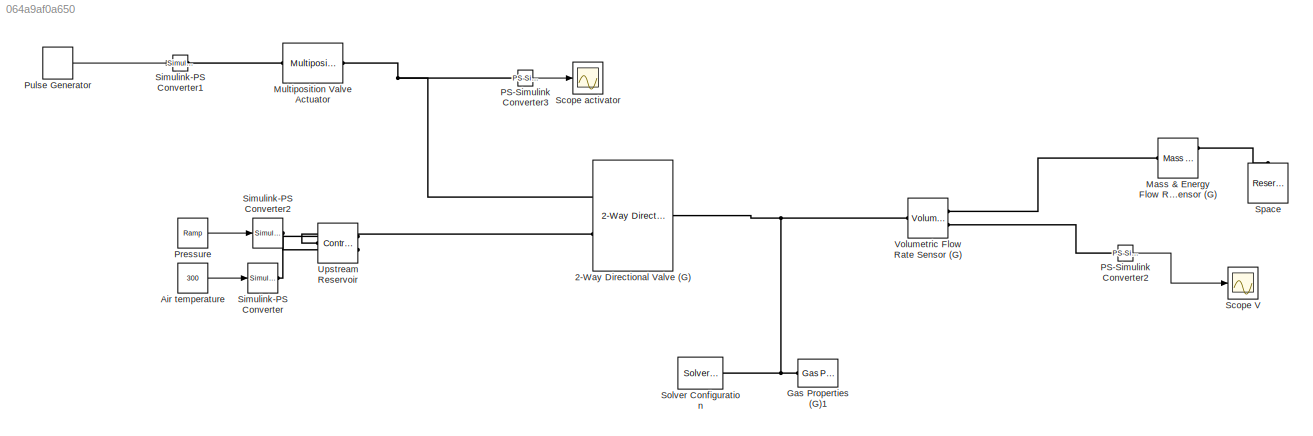
MODEL slx_064a9af0a650
KIND model
CONFIG AbsTol = auto
CONFIG EnableMultiTasking = off
CONFIG FixedStep = auto
CONFIG MaxStep = auto
CONFIG MinStep = auto
CONFIG RelTol = 1e-3
CONFIG SampleTimeConstraint = Unconstrained
CONFIG SolverName = VariableStepAuto
CONFIG StartTime = 0.0
CONFIG StopTime = 20
BLOCK [Reference] 2-Way Directional Valve (G)  REF=SimscapeFluids_lib/Gas/Valves & Orifices/Directional Control
Valves/2-Way Directional
Valve (G)
  Ports = [0, 0, 0, 0, 0, 1, 2]
  SourceBlock = SimscapeFluids_lib/Gas/Valves & Orifices/Directional Control\nValves/2-Way Directional\nValve (G)
  SourceProductBaseCode = SH
  SourceType = 2-Way Directional\nValve (G)
BLOCK [Constant] Air temperature
  Value = 300
BLOCK [Reference] Gas Properties (G)1  REF=fl_lib/Gas/Utilities/Gas Properties (G)
  Ports = [0, 0, 0, 0, 0, 0, 1]
  SourceBlock = fl_lib/Gas/Utilities/Gas Properties (G)
  SourceProductBaseCode = SS
  SourceType = Gas Properties (G)
BLOCK [Reference] Mass & Energy Flow Rate Sensor (G)  REF=fl_lib/Gas/Sensors/Mass & Energy Flow
Rate Sensor (G)
  Ports = [0, 0, 0, 0, 0, 1, 3]
  SourceBlock = fl_lib/Gas/Sensors/Mass & Energy Flow\nRate Sensor (G)
  SourceProductBaseCode = SS
  SourceType = Mass & Energy Flow\nRate Sensor (G)
BLOCK [Reference] Multiposition Valve Actuator  REF=SimscapeFluids_lib/Valve Actuators/Multiposition Valve
Actuator
  Ports = [0, 0, 0, 0, 0, 1, 1]
  SourceBlock = SimscapeFluids_lib/Valve Actuators/Multiposition Valve\nActuator
  SourceProductBaseCode = SH
  SourceType = Multiposition Valve\nActuator
BLOCK [Reference] PS-Simulink Converter2  REF=nesl_utility/PS-Simulink
Converter
  Ports = [0, 1, 0, 0, 0, 1]
  SourceBlock = nesl_utility/PS-Simulink\nConverter
  SourceProductBaseCode = PW,SS
  SourceType = PS-Simulink\nConverter
BLOCK [Reference] PS-Simulink Converter3  REF=nesl_utility/PS-Simulink
Converter
  Ports = [0, 1, 0, 0, 0, 1]
  SourceBlock = nesl_utility/PS-Simulink\nConverter
  SourceProductBaseCode = PW,SS
  SourceType = PS-Simulink\nConverter
BLOCK [Reference] Pressure  REF=simulink/Sources/Ramp
  Ports = [0, 1]
  SourceBlock = simulink/Sources/Ramp
  SourceProductBaseCode = SL
  SourceType = Ramp
BLOCK [DiscretePulseGenerator] Pulse Generator
  Amplitude = 24
  PhaseDelay = 2
  Ports = [0, 1]
  PulseType = Time based
  PulseWidth = 50
BLOCK [Scope] Scope V
  Floating = off
  NumInputPorts = 1
  Ports = [1]
  ScopeSpecificationString = Simulink.scopes.TimeScopeBlockCfg('CurrentConfiguration', extmgr.ConfigurationSet(extmgr.Configuration('Core','General UI',true),extmgr.Configuration('Core','Source UI',true),extmgr.Configuration('Sources','WiredSimulink',true,'DataLoggingVariableName','ScopeData2'),extmgr.Configuration('Visuals','Time Domain',true,'SerializedDisplays',{struct('MinYLimReal','-0.00201','MaxYLimReal','0.01817','YLab...<+1381ch>
BLOCK [Scope] Scope activator
  Floating = off
  NumInputPorts = 1
  Ports = [1]
  ScopeSpecificationString = Simulink.scopes.TimeScopeBlockCfg('CurrentConfiguration', extmgr.ConfigurationSet(extmgr.Configuration('Core','General UI',true),extmgr.Configuration('Core','Source UI',true),extmgr.Configuration('Sources','WiredSimulink',true,'DataLoggingVariableName','ScopeData4'),extmgr.Configuration('Visuals','Time Domain',true,'SerializedDisplays',{struct('MinYLimReal','-0.00125','MaxYLimReal','0.01125','YLab...<+1381ch>
BLOCK [Reference] Simulink-PS Converter  REF=nesl_utility/Simulink-PS
Converter
  Ports = [1, 0, 0, 0, 0, 0, 1]
  SourceBlock = nesl_utility/Simulink-PS\nConverter
  SourceProductBaseCode = PW,SS
  SourceType = Simulink-PS\nConverter
BLOCK [Reference] Simulink-PS Converter1  REF=nesl_utility/Simulink-PS
Converter
  Ports = [1, 0, 0, 0, 0, 0, 1]
  SourceBlock = nesl_utility/Simulink-PS\nConverter
  SourceProductBaseCode = PW,SS
  SourceType = Simulink-PS\nConverter
BLOCK [Reference] Simulink-PS Converter2  REF=nesl_utility/Simulink-PS
Converter
  Ports = [1, 0, 0, 0, 0, 0, 1]
  SourceBlock = nesl_utility/Simulink-PS\nConverter
  SourceProductBaseCode = PW,SS
  SourceType = Simulink-PS\nConverter
BLOCK [Reference] Solver Configuration  REF=nesl_utility/Solver
Configuration
  Ports = [0, 0, 0, 0, 0, 0, 1]
  SourceBlock = nesl_utility/Solver\nConfiguration
  SourceProductBaseCode = PW,SS
  SourceType = Solver\nConfiguration
BLOCK [Reference] Space  REF=fl_lib/Gas/Elements/Reservoir (G)
  NameLocation = right
  Ports = [0, 0, 0, 0, 0, 1]
  SourceBlock = fl_lib/Gas/Elements/Reservoir (G)
  SourceProductBaseCode = SS
  SourceType = Reservoir (G)
BLOCK [Reference] Upstream Reservoir  REF=fl_lib/Gas/Elements/Controlled Reservoir
(G)
  Ports = [0, 0, 0, 0, 0, 1, 2]
  SourceBlock = fl_lib/Gas/Elements/Controlled Reservoir\n(G)
  SourceProductBaseCode = SS
  SourceType = Controlled Reservoir\n(G)
BLOCK [Reference] Volumetric Flow Rate Sensor (G)  REF=fl_lib/Gas/Sensors/Volumetric Flow Rate
Sensor (G)
  Ports = [0, 0, 0, 0, 0, 1, 2]
  SourceBlock = fl_lib/Gas/Sensors/Volumetric Flow Rate\nSensor (G)
  SourceProductBaseCode = SS
  SourceType = Volumetric Flow Rate\nSensor (G)
LINE Air temperature:1 -> Simulink-PS Converter:1
LINE PS-Simulink Converter2:1 -> Scope V:1
LINE PS-Simulink Converter3:1 -> Scope activator:1
LINE Pressure:1 -> Simulink-PS Converter2:1
LINE Pulse Generator:1 -> Simulink-PS Converter1:1
PNET net1: 2-Way Directional Valve (G):LConn1 -- Gas Properties (G)1:RConn1 -- Solver Configuration:RConn1 -- Volumetric Flow Rate Sensor (G):LConn1
PNET net2: 2-Way Directional Valve (G):RConn1 -- Multiposition Valve Actuator:RConn1 -- PS-Simulink Converter3:LConn1
PLINE 2-Way Directional Valve (G):RConn2 -- Upstream Reservoir:LConn1
PLINE Mass & Energy Flow Rate Sensor (G):LConn1 -- Volumetric Flow Rate Sensor (G):RConn1
PLINE Mass & Energy Flow Rate Sensor (G):RConn1 -- Space:LConn1
PLINE Multiposition Valve Actuator:LConn1 -- Simulink-PS Converter1:RConn1
PLINE PS-Simulink Converter2:LConn1 -- Volumetric Flow Rate Sensor (G):RConn2
PLINE Simulink-PS Converter2:RConn1 -- Upstream Reservoir:RConn2
PLINE Simulink-PS Converter:RConn1 -- Upstream Reservoir:RConn1
note: PNET lines group multi-terminal physical nets as a canonical sorted terminal list (undirected conserving connections); 2-terminal nets keep the pairwise PLINE form
